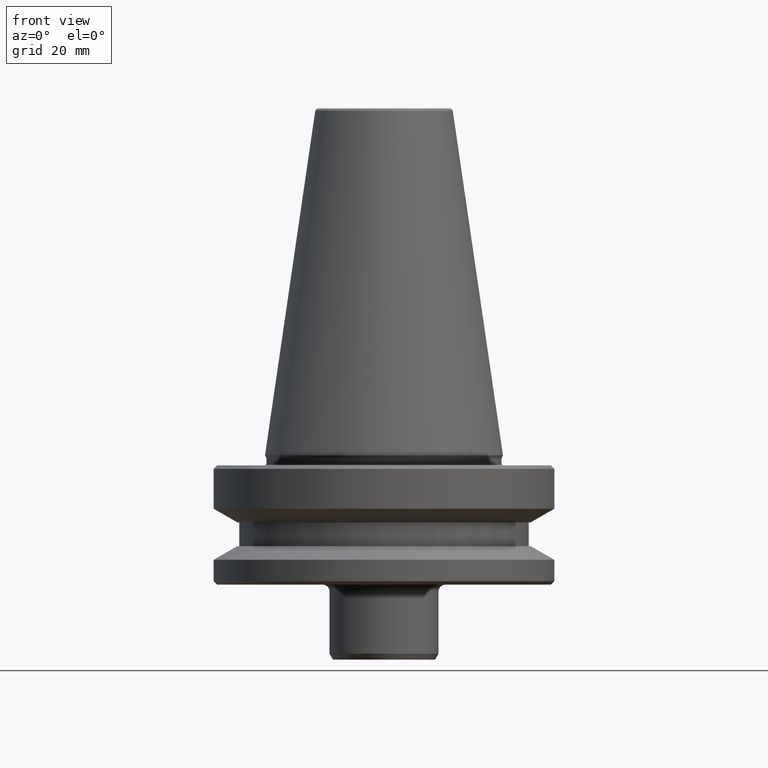
[diagram: clean part render]
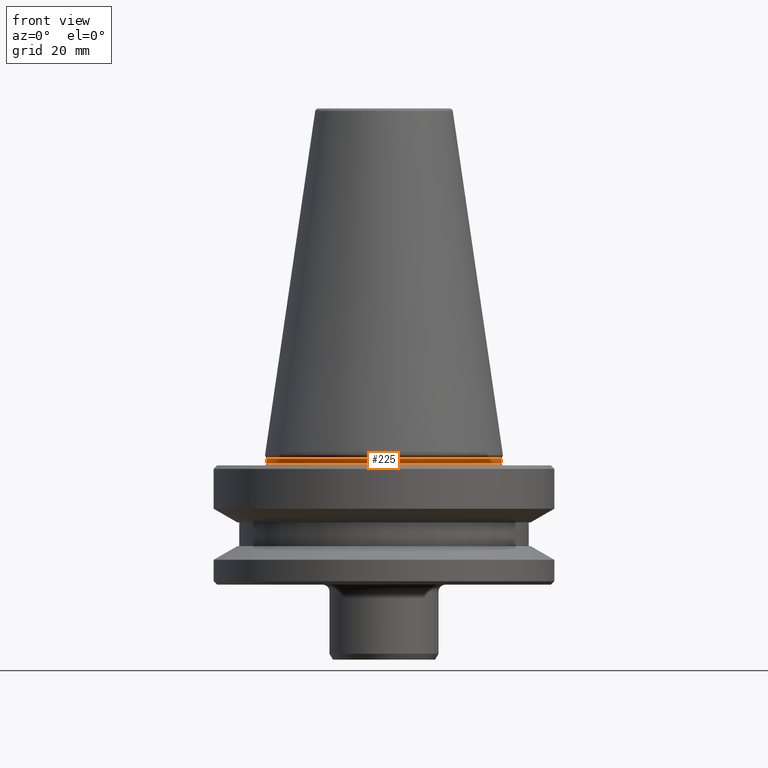
[diagram: same view with one face highlighted and labeled with its STEP entity id]
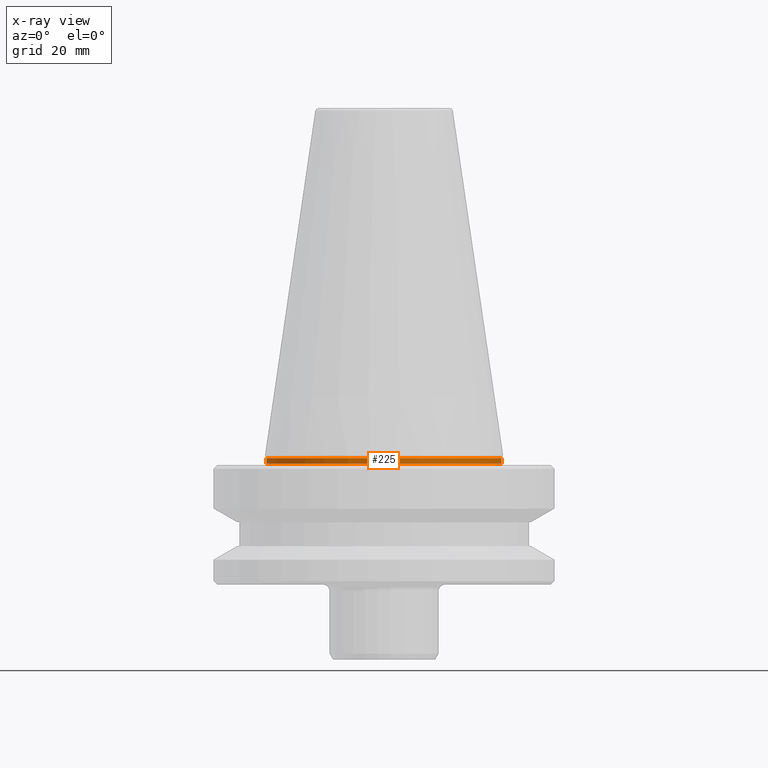
[diagram: x-ray of the same camera — body ghosted, the highlighted face saturated]
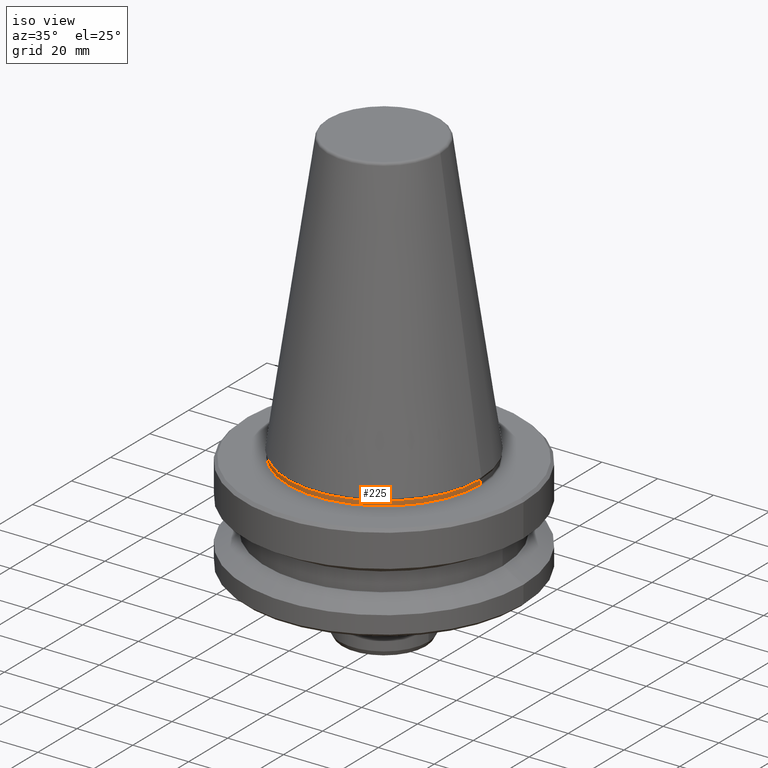
[diagram: same view with one face highlighted and labeled with its STEP entity id]
A machine part, front view. The second image highlights one B-rep face of the part: STEP entity #225.
The next image is the same camera in x-ray: the body ghosted, the highlighted face saturated — about 0% of this face is hidden behind the body in this view.
A second angle (iso view) of the same face is appended — the face is thin or edge-on in the first view.
In plain terms, the highlighted cylindrical surface (partial cylindrical patch) has radius 34.5 mm, axis along (-0, -0, 1).
Its self-contained STEP definition (entity closure, byte-faithful):
#12 = DIRECTION ( 'NONE',  ( -0.0000000000000000000, -0.0000000000000000000, 1.000000000000000000 ) ) ;
#71 = DIRECTION ( 'NONE',  ( 1.000000000000000000, 0.0000000000000000000, 0.0000000000000000000 ) ) ;
#110 = CARTESIAN_POINT ( 'NONE',  ( -34.50000000000019900, 4.255647627037059800E-015, -2.500000000001723100 ) ) ;
#117 = DIRECTION ( 'NONE',  ( 1.000000000000000000, 0.0000000000000000000, 0.0000000000000000000 ) ) ;
#126 = CARTESIAN_POINT ( 'NONE',  ( 0.0000000000000000000, 0.0000000000000000000, -2.500000000001723100 ) ) ;
#170 = VECTOR ( 'NONE', #12, 1000.000000000000000 ) ;
#196 = LINE ( 'NONE', #880, #170 ) ;
#206 = VERTEX_POINT ( 'NONE', #957 ) ;
#218 = AXIS2_PLACEMENT_3D ( 'NONE', #126, #801, #71 ) ;
#224 = ORIENTED_EDGE ( 'NONE', *, *, #941, .F. ) ;
#225 = ADVANCED_FACE ( 'NONE', ( #727 ), #906, .T. ) ;
#316 = DIRECTION ( 'NONE',  ( -0.0000000000000000000, -0.0000000000000000000, 1.000000000000000000 ) ) ;
#364 = CARTESIAN_POINT ( 'NONE',  ( 34.49999999999997200, 0.0000000000000000000, -0.9114154412159791700 ) ) ;
#380 = AXIS2_PLACEMENT_3D ( 'NONE', #786, #316, #855 ) ;
#422 = EDGE_CURVE ( 'NONE', #876, #990, #985, .T. ) ;
#455 = LINE ( 'NONE', #858, #662 ) ;
#526 = DIRECTION ( 'NONE',  ( -0.0000000000000000000, -0.0000000000000000000, 1.000000000000000000 ) ) ;
#531 = ORIENTED_EDGE ( 'NONE', *, *, #422, .F. ) ;
#551 = CARTESIAN_POINT ( 'NONE',  ( -34.49999999999997200, 4.225031457058372100E-015, -0.9114154412159791700 ) ) ;
#635 = CIRCLE ( 'NONE', #218, 34.50000000000019900 ) ;
#662 = VECTOR ( 'NONE', #839, 1000.000000000000000 ) ;
#727 = FACE_OUTER_BOUND ( 'NONE', #824, .T. ) ;
#753 = AXIS2_PLACEMENT_3D ( 'NONE', #754, #526, #117 ) ;
#754 = CARTESIAN_POINT ( 'NONE',  ( 0.0000000000000000000, 0.0000000000000000000, -0.9114154412159791700 ) ) ;
#766 = EDGE_CURVE ( 'NONE', #206, #990, #455, .T. ) ;
#786 = CARTESIAN_POINT ( 'NONE',  ( 0.0000000000000000000, 0.0000000000000000000, 108.3108805077434200 ) ) ;
#801 = DIRECTION ( 'NONE',  ( -0.0000000000000000000, -0.0000000000000000000, 1.000000000000000000 ) ) ;
#810 = EDGE_CURVE ( 'NONE', #813, #206, #635, .T. ) ;
#813 = VERTEX_POINT ( 'NONE', #110 ) ;
#824 = EDGE_LOOP ( 'NONE', ( #224, #895, #877, #531 ) ) ;
#839 = DIRECTION ( 'NONE',  ( -0.0000000000000000000, -0.0000000000000000000, 1.000000000000000000 ) ) ;
#855 = DIRECTION ( 'NONE',  ( 1.000000000000000000, 0.0000000000000000000, 0.0000000000000000000 ) ) ;
#858 = CARTESIAN_POINT ( 'NONE',  ( 34.50000000000008500, 0.0000000000000000000, 108.3108805077434200 ) ) ;
#876 = VERTEX_POINT ( 'NONE', #551 ) ;
#877 = ORIENTED_EDGE ( 'NONE', *, *, #766, .T. ) ;
#880 = CARTESIAN_POINT ( 'NONE',  ( -34.50000000000008500, 4.225031457058379200E-015, 108.3108805077434200 ) ) ;
#895 = ORIENTED_EDGE ( 'NONE', *, *, #810, .T. ) ;
#906 = CYLINDRICAL_SURFACE ( 'NONE', #380, 34.50000000000008500 ) ;
#941 = EDGE_CURVE ( 'NONE', #813, #876, #196, .T. ) ;
#957 = CARTESIAN_POINT ( 'NONE',  ( 34.50000000000019900, 0.0000000000000000000, -2.500000000001723100 ) ) ;
#985 = CIRCLE ( 'NONE', #753, 34.49999999999997200 ) ;
#990 = VERTEX_POINT ( 'NONE', #364 ) ;